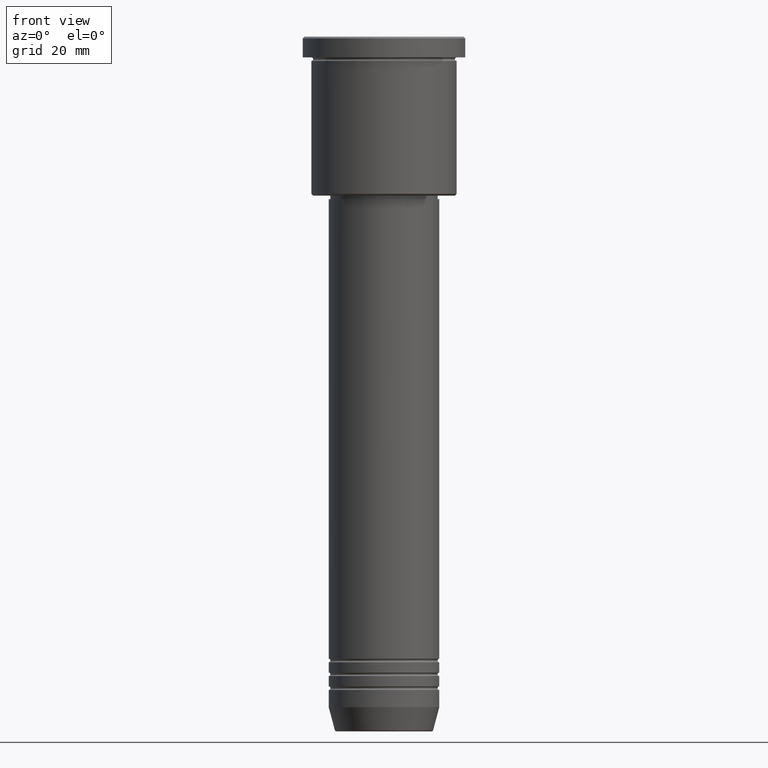
[diagram: clean part render]
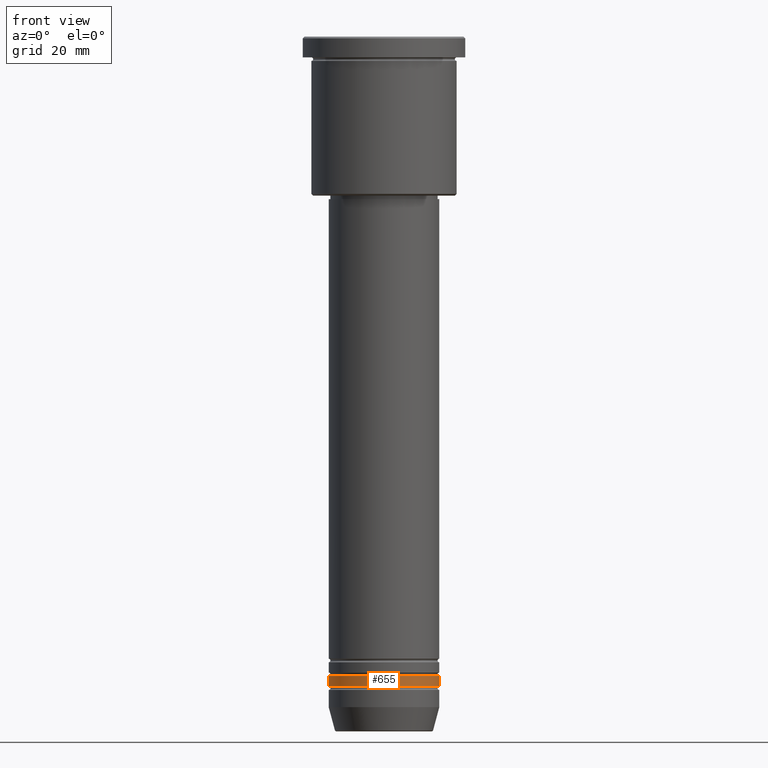
[diagram: same view with one face highlighted and labeled with its STEP entity id]
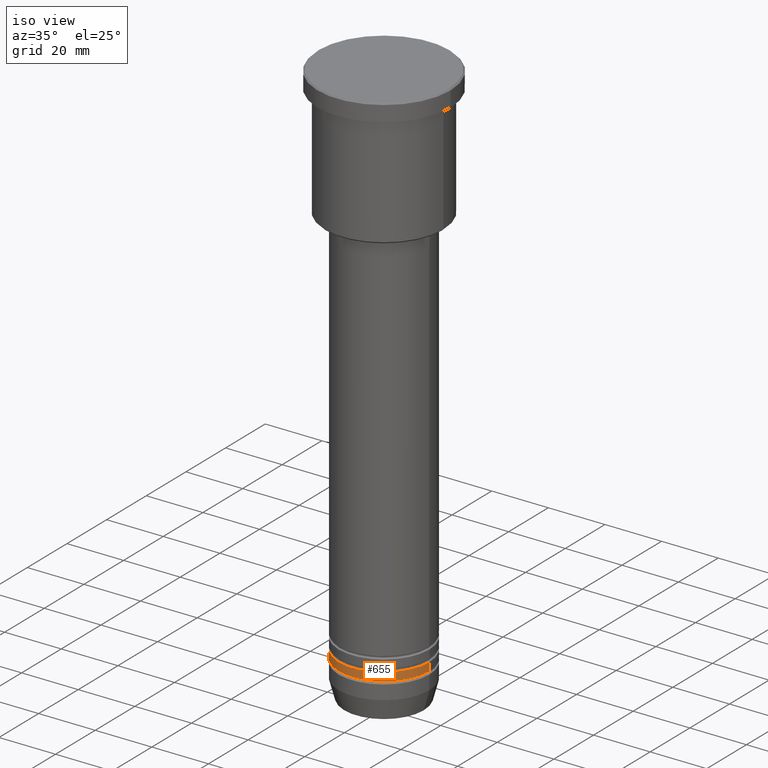
[diagram: same view with one face highlighted and labeled with its STEP entity id]
A machine part, front view. The second image highlights one B-rep face of the part: STEP entity #655.
A second angle (iso view) of the same face is appended — the face is thin or edge-on in the first view.
In plain terms, the highlighted cylindrical surface (partial cylindrical patch) has radius 16 mm, axis along (-0, -0, 1).
Its self-contained STEP definition (entity closure, byte-faithful):
#1 = ORIENTED_EDGE ( 'NONE', *, *, #1028, .F. ) ;
#69 = CARTESIAN_POINT ( 'NONE',  ( -16.00000000000000000, 1.959434878635765131E-15, -187.9999999999998863 ) ) ;
#81 = VECTOR ( 'NONE', #459, 1000.000000000000000 ) ;
#190 = DIRECTION ( 'NONE',  ( -0.000000000000000000, -0.000000000000000000, 1.000000000000000000 ) ) ;
#220 = DIRECTION ( 'NONE',  ( 1.000000000000000000, 0.000000000000000000, 0.000000000000000000 ) ) ;
#236 = VERTEX_POINT ( 'NONE', #950 ) ;
#239 = AXIS2_PLACEMENT_3D ( 'NONE', #659, #562, #843 ) ;
#278 = DIRECTION ( 'NONE',  ( 1.000000000000000000, 0.000000000000000000, 0.000000000000000000 ) ) ;
#292 = CARTESIAN_POINT ( 'NONE',  ( 16.00000000000000000, 0.000000000000000000, 0.000000000000000000 ) ) ;
#337 = EDGE_CURVE ( 'NONE', #236, #736, #456, .T. ) ;
#371 = CARTESIAN_POINT ( 'NONE',  ( -16.00000000000000000, 1.959434878635765131E-15, 0.000000000000000000 ) ) ;
#381 = LINE ( 'NONE', #292, #862 ) ;
#394 = CARTESIAN_POINT ( 'NONE',  ( 16.00000000000000000, 0.000000000000000000, -184.9999999999999147 ) ) ;
#456 = CIRCLE ( 'NONE', #1123, 16.00000000000000000 ) ;
#459 = DIRECTION ( 'NONE',  ( -0.000000000000000000, -0.000000000000000000, 1.000000000000000000 ) ) ;
#481 = EDGE_LOOP ( 'NONE', ( #1, #499, #919, #1063 ) ) ;
#483 = EDGE_CURVE ( 'NONE', #778, #736, #381, .T. ) ;
#499 = ORIENTED_EDGE ( 'NONE', *, *, #966, .T. ) ;
#557 = AXIS2_PLACEMENT_3D ( 'NONE', #915, #190, #278 ) ;
#562 = DIRECTION ( 'NONE',  ( -0.000000000000000000, -0.000000000000000000, 1.000000000000000000 ) ) ;
#651 = DIRECTION ( 'NONE',  ( -0.000000000000000000, -0.000000000000000000, 1.000000000000000000 ) ) ;
#655 = ADVANCED_FACE ( 'NONE', ( #906 ), #685, .T. ) ;
#659 = CARTESIAN_POINT ( 'NONE',  ( 0.000000000000000000, 0.000000000000000000, 0.000000000000000000 ) ) ;
#665 = DIRECTION ( 'NONE',  ( -0.000000000000000000, -0.000000000000000000, 1.000000000000000000 ) ) ;
#685 = CYLINDRICAL_SURFACE ( 'NONE', #239, 16.00000000000000000 ) ;
#711 = CIRCLE ( 'NONE', #557, 16.00000000000000000 ) ;
#736 = VERTEX_POINT ( 'NONE', #394 ) ;
#778 = VERTEX_POINT ( 'NONE', #881 ) ;
#810 = LINE ( 'NONE', #371, #81 ) ;
#843 = DIRECTION ( 'NONE',  ( 1.000000000000000000, 0.000000000000000000, 0.000000000000000000 ) ) ;
#862 = VECTOR ( 'NONE', #651, 1000.000000000000000 ) ;
#881 = CARTESIAN_POINT ( 'NONE',  ( 16.00000000000000000, 0.000000000000000000, -187.9999999999998863 ) ) ;
#906 = FACE_OUTER_BOUND ( 'NONE', #481, .T. ) ;
#915 = CARTESIAN_POINT ( 'NONE',  ( 0.000000000000000000, 0.000000000000000000, -187.9999999999998863 ) ) ;
#919 = ORIENTED_EDGE ( 'NONE', *, *, #483, .T. ) ;
#950 = CARTESIAN_POINT ( 'NONE',  ( -16.00000000000000000, 1.959434878635765131E-15, -184.9999999999999147 ) ) ;
#966 = EDGE_CURVE ( 'NONE', #1097, #778, #711, .T. ) ;
#1028 = EDGE_CURVE ( 'NONE', #1097, #236, #810, .T. ) ;
#1063 = ORIENTED_EDGE ( 'NONE', *, *, #337, .F. ) ;
#1097 = VERTEX_POINT ( 'NONE', #69 ) ;
#1108 = CARTESIAN_POINT ( 'NONE',  ( 0.000000000000000000, 0.000000000000000000, -184.9999999999999147 ) ) ;
#1123 = AXIS2_PLACEMENT_3D ( 'NONE', #1108, #665, #220 ) ;